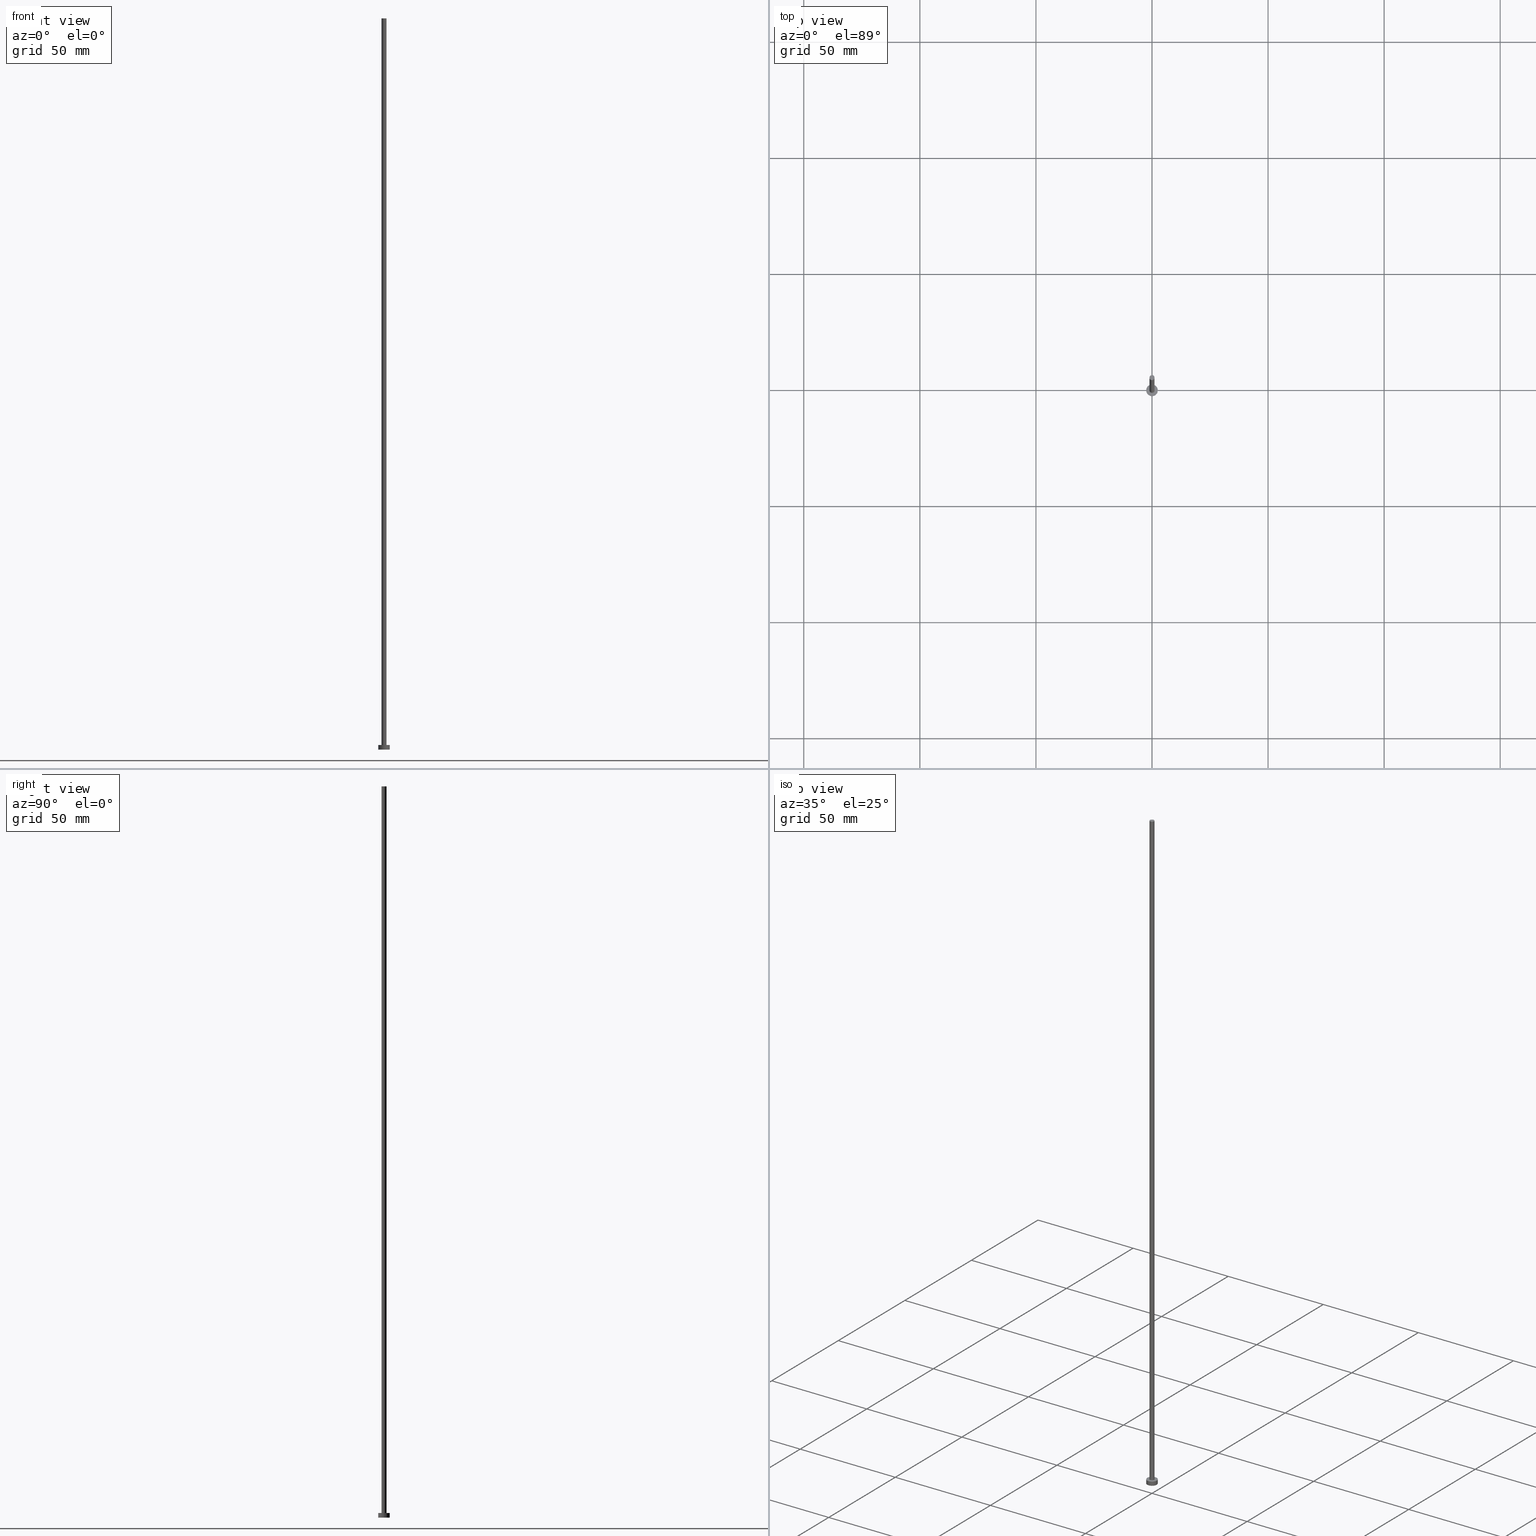
[diagram: canonical four-view strip — front | top / right | iso, engineering-drawing reading convention]
A machine part, canonical four-view strip (front | top / right | iso — engineering-drawing reading convention). The complete STEP part file that produces these views, byte-faithful:
ISO-10303-21;
HEADER;
FILE_DESCRIPTION (( 'STEP AP203' ),
    '1' );
FILE_NAME ('51c0.STEP',
    '2023-02-13T15:57:58',
    ( '' ),
    ( '' ),
    'SwSTEP 2.0',
    'SolidWorks 2019',
    '' );
FILE_SCHEMA (( 'CONFIG_CONTROL_DESIGN' ));
ENDSEC;

DATA;
#1 = DIRECTION ( 'NONE',  ( 0.000000000000000000, 0.000000000000000000, 1.000000000000000000 ) ) ;
#2 = CYLINDRICAL_SURFACE ( 'NONE', #48, 2.500000000000000000 ) ;
#3 = DIRECTION ( 'NONE',  ( 0.000000000000000000, 0.000000000000000000, 1.000000000000000000 ) ) ;
#4 =( GEOMETRIC_REPRESENTATION_CONTEXT ( 3 ) GLOBAL_UNCERTAINTY_ASSIGNED_CONTEXT ( ( #146 ) ) GLOBAL_UNIT_ASSIGNED_CONTEXT ( ( #225, #49, #170 ) ) REPRESENTATION_CONTEXT ( 'NONE', 'WORKASPACE' ) );
#5 = DIRECTION ( 'NONE',  ( 1.000000000000000000, 0.000000000000000000, 0.000000000000000000 ) ) ;
#6 = FACE_OUTER_BOUND ( 'NONE', #230, .T. ) ;
#7 = ORIENTED_EDGE ( 'NONE', *, *, #57, .T. ) ;
#8 = CARTESIAN_POINT ( 'NONE',  ( 1.100000000000000089, 1.347111479062088503E-16, 2.000000000000000000 ) ) ;
#9 = CARTESIAN_POINT ( 'NONE',  ( 0.000000000000000000, 0.000000000000000000, 2.000000000000000000 ) ) ;
#10 = ORIENTED_EDGE ( 'NONE', *, *, #206, .T. ) ;
#11 = CYLINDRICAL_SURFACE ( 'NONE', #132, 2.500000000000000000 ) ;
#12 = ORIENTED_EDGE ( 'NONE', *, *, #138, .F. ) ;
#13 = APPLICATION_PROTOCOL_DEFINITION ( 'international standard', 'config_control_design', 1994, #63 ) ;
#14 = CARTESIAN_POINT ( 'NONE',  ( -1.100000000000000089, 0.000000000000000000, 2.000000000000000000 ) ) ;
#15 = SHAPE_DEFINITION_REPRESENTATION ( #168, #141 ) ;
#16 = LOCAL_TIME ( 16, 57, 58.00000000000000000, #149 ) ;
#17 = APPROVAL_DATE_TIME ( #152, #182 ) ;
#18 = AXIS2_PLACEMENT_3D ( 'NONE', #180, #1, #77 ) ;
#19 = EDGE_CURVE ( 'NONE', #136, #81, #255, .T. ) ;
#20 = CIRCLE ( 'NONE', #227, 1.100000000000000089 ) ;
#21 = DIRECTION ( 'NONE',  ( -1.000000000000000000, 0.000000000000000000, 0.000000000000000000 ) ) ;
#22 = DIRECTION ( 'NONE',  ( -0.000000000000000000, -0.000000000000000000, -1.000000000000000000 ) ) ;
#23 = CARTESIAN_POINT ( 'NONE',  ( -2.500000000000000000, 0.000000000000000000, 2.000000000000000000 ) ) ;
#24 = APPROVAL_STATUS ( 'not_yet_approved' ) ;
#25 = CC_DESIGN_APPROVAL ( #163, ( #101 ) ) ;
#26 = ORIENTED_EDGE ( 'NONE', *, *, #57, .F. ) ;
#27 = APPLICATION_PROTOCOL_DEFINITION ( 'international standard', 'config_control_design', 1994, #113 ) ;
#28 = SECURITY_CLASSIFICATION_LEVEL ( 'unclassified' ) ;
#29 = APPROVAL_PERSON_ORGANIZATION ( #208, #182, #192 ) ;
#30 = ADVANCED_FACE ( 'NONE', ( #216 ), #126, .T. ) ;
#31 = CARTESIAN_POINT ( 'NONE',  ( 0.000000000000000000, 0.000000000000000000, 0.000000000000000000 ) ) ;
#32 = CIRCLE ( 'NONE', #179, 1.100000000000000089 ) ;
#33 = DIRECTION ( 'NONE',  ( 1.000000000000000000, 0.000000000000000000, -0.000000000000000000 ) ) ;
#34 = LINE ( 'NONE', #98, #199 ) ;
#35 = CC_DESIGN_APPROVAL ( #198, ( #150 ) ) ;
#36 = FACE_OUTER_BOUND ( 'NONE', #68, .T. ) ;
#37 = MANIFOLD_SOLID_BREP ( 'P�idat vysunut�m3', #42 ) ;
#38 = CIRCLE ( 'NONE', #153, 2.500000000000000000 ) ;
#39 = CARTESIAN_POINT ( 'NONE',  ( 0.000000000000000000, 0.000000000000000000, 0.000000000000000000 ) ) ;
#40 = FACE_OUTER_BOUND ( 'NONE', #75, .T. ) ;
#41 = ADVANCED_FACE ( 'NONE', ( #104, #36 ), #201, .T. ) ;
#42 = CLOSED_SHELL ( 'NONE', ( #118, #209, #120, #41, #95, #30, #213 ) ) ;
#43 = CARTESIAN_POINT ( 'NONE',  ( 0.000000000000000000, 0.000000000000000000, 2.000000000000000000 ) ) ;
#44 = ORIENTED_EDGE ( 'NONE', *, *, #19, .T. ) ;
#45 = EDGE_CURVE ( 'NONE', #136, #253, #144, .T. ) ;
#46 = CALENDAR_DATE ( 2023, 13, 2 ) ;
#47 = PERSON_AND_ORGANIZATION ( #231, #109 ) ;
#48 = AXIS2_PLACEMENT_3D ( 'NONE', #177, #217, #21 ) ;
#49 =( NAMED_UNIT ( * ) PLANE_ANGLE_UNIT ( ) SI_UNIT ( $, .RADIAN. ) );
#50 = CC_DESIGN_PERSON_AND_ORGANIZATION_ASSIGNMENT ( #133, #112, ( #181 ) ) ;
#51 = PERSON_AND_ORGANIZATION_ROLE ( 'design_supplier' ) ;
#52 = DIRECTION ( 'NONE',  ( -0.000000000000000000, -0.000000000000000000, -1.000000000000000000 ) ) ;
#53 = EDGE_CURVE ( 'NONE', #119, #73, #78, .T. ) ;
#54 = DIRECTION ( 'NONE',  ( -1.000000000000000000, 0.000000000000000000, 0.000000000000000000 ) ) ;
#55 = LOCAL_TIME ( 16, 57, 58.00000000000000000, #110 ) ;
#56 = DIRECTION ( 'NONE',  ( -0.000000000000000000, -0.000000000000000000, -1.000000000000000000 ) ) ;
#57 = EDGE_CURVE ( 'NONE', #240, #81, #147, .T. ) ;
#58 = AXIS2_PLACEMENT_3D ( 'NONE', #174, #97, #154 ) ;
#59 = ORIENTED_EDGE ( 'NONE', *, *, #53, .T. ) ;
#60 = CIRCLE ( 'NONE', #242, 1.100000000000000089 ) ;
#61 = ORIENTED_EDGE ( 'NONE', *, *, #45, .T. ) ;
#62 = DATE_TIME_ROLE ( 'creation_date' ) ;
#63 = APPLICATION_CONTEXT ( 'configuration controlled 3d designs of mechanical parts and assemblies' ) ;
#64 = COORDINATED_UNIVERSAL_TIME_OFFSET ( 1, 0, .AHEAD. ) ;
#65 = LOCAL_TIME ( 16, 57, 58.00000000000000000, #117 ) ;
#66 = CARTESIAN_POINT ( 'NONE',  ( 2.500000000000000000, 3.061616997868383141E-16, 2.000000000000000000 ) ) ;
#67 = EDGE_CURVE ( 'NONE', #119, #128, #32, .T. ) ;
#68 = EDGE_LOOP ( 'NONE', ( #61, #127 ) ) ;
#69 = DESIGN_CONTEXT ( 'detailed design', #113, 'design' ) ;
#70 = APPROVAL_ROLE ( '' ) ;
#71 = AXIS2_PLACEMENT_3D ( 'NONE', #31, #187, #137 ) ;
#72 = DIRECTION ( 'NONE',  ( 1.000000000000000000, 0.000000000000000000, 0.000000000000000000 ) ) ;
#73 = VERTEX_POINT ( 'NONE', #8 ) ;
#74 = ORIENTED_EDGE ( 'NONE', *, *, #67, .F. ) ;
#75 = EDGE_LOOP ( 'NONE', ( #244, #26 ) ) ;
#76 = CARTESIAN_POINT ( 'NONE',  ( 0.000000000000000000, 0.000000000000000000, 2.000000000000000000 ) ) ;
#77 = DIRECTION ( 'NONE',  ( 1.000000000000000000, 0.000000000000000000, 0.000000000000000000 ) ) ;
#78 = LINE ( 'NONE', #156, #188 ) ;
#79 = EDGE_CURVE ( 'NONE', #73, #159, #60, .T. ) ;
#80 = CYLINDRICAL_SURFACE ( 'NONE', #99, 1.100000000000000089 ) ;
#81 = VERTEX_POINT ( 'NONE', #103 ) ;
#82 = CARTESIAN_POINT ( 'NONE',  ( 0.000000000000000000, 0.000000000000000000, 315.0000000000000000 ) ) ;
#83 = ORIENTED_EDGE ( 'NONE', *, *, #53, .F. ) ;
#84 = CARTESIAN_POINT ( 'NONE',  ( 0.000000000000000000, 0.000000000000000000, 2.000000000000000000 ) ) ;
#85 = AXIS2_PLACEMENT_3D ( 'NONE', #76, #3, #123 ) ;
#86 = CARTESIAN_POINT ( 'NONE',  ( -1.100000000000000089, 0.000000000000000000, 315.0000000000000000 ) ) ;
#87 = DIRECTION ( 'NONE',  ( 0.000000000000000000, 0.000000000000000000, 1.000000000000000000 ) ) ;
#88 = PERSON_AND_ORGANIZATION_ROLE ( 'design_owner' ) ;
#89 = EDGE_LOOP ( 'NONE', ( #221, #125 ) ) ;
#90 = DIRECTION ( 'NONE',  ( -1.000000000000000000, 0.000000000000000000, 0.000000000000000000 ) ) ;
#91 = PERSON_AND_ORGANIZATION_ROLE ( 'creator' ) ;
#92 = ORIENTED_EDGE ( 'NONE', *, *, #234, .T. ) ;
#93 = VECTOR ( 'NONE', #121, 1000.000000000000000 ) ;
#94 = COORDINATED_UNIVERSAL_TIME_OFFSET ( 1, 0, .AHEAD. ) ;
#95 = ADVANCED_FACE ( 'NONE', ( #40 ), #238, .F. ) ;
#96 = EDGE_LOOP ( 'NONE', ( #12, #92, #7, #114 ) ) ;
#97 = DIRECTION ( 'NONE',  ( 0.000000000000000000, 0.000000000000000000, 1.000000000000000000 ) ) ;
#98 = CARTESIAN_POINT ( 'NONE',  ( 2.500000000000000000, 3.061616997868383141E-16, 2.000000000000000000 ) ) ;
#99 = AXIS2_PLACEMENT_3D ( 'NONE', #157, #204, #129 ) ;
#100 = DIRECTION ( 'NONE',  ( 0.000000000000000000, 0.000000000000000000, 1.000000000000000000 ) ) ;
#101 = PRODUCT_DEFINITION ( 'NEZN�M�', '', #150, #69 ) ;
#102 = CC_DESIGN_SECURITY_CLASSIFICATION ( #181, ( #150 ) ) ;
#103 = CARTESIAN_POINT ( 'NONE',  ( -2.500000000000000000, 0.000000000000000000, 0.000000000000000000 ) ) ;
#104 = FACE_BOUND ( 'NONE', #89, .T. ) ;
#105 = DIRECTION ( 'NONE',  ( 0.000000000000000000, 0.000000000000000000, 1.000000000000000000 ) ) ;
#106 = EDGE_CURVE ( 'NONE', #159, #73, #20, .T. ) ;
#107 = LINE ( 'NONE', #189, #93 ) ;
#108 = FACE_OUTER_BOUND ( 'NONE', #184, .T. ) ;
#109 = ORGANIZATION ( 'NEUR�EN�', 'NEUR�EN�', '' ) ;
#110 = COORDINATED_UNIVERSAL_TIME_OFFSET ( 1, 0, .AHEAD. ) ;
#111 = AXIS2_PLACEMENT_3D ( 'NONE', #219, #235, #54 ) ;
#112 = PERSON_AND_ORGANIZATION_ROLE ( 'classification_officer' ) ;
#113 = APPLICATION_CONTEXT ( 'configuration controlled 3d designs of mechanical parts and assemblies' ) ;
#114 = ORIENTED_EDGE ( 'NONE', *, *, #19, .F. ) ;
#115 = ORIENTED_EDGE ( 'NONE', *, *, #79, .T. ) ;
#116 = APPROVAL_STATUS ( 'not_yet_approved' ) ;
#117 = COORDINATED_UNIVERSAL_TIME_OFFSET ( 1, 0, .AHEAD. ) ;
#118 = ADVANCED_FACE ( 'NONE', ( #6 ), #80, .T. ) ;
#119 = VERTEX_POINT ( 'NONE', #245 ) ;
#120 = ADVANCED_FACE ( 'NONE', ( #108 ), #11, .T. ) ;
#121 = DIRECTION ( 'NONE',  ( -0.000000000000000000, -0.000000000000000000, -1.000000000000000000 ) ) ;
#122 = ORIENTED_EDGE ( 'NONE', *, *, #215, .T. ) ;
#123 = DIRECTION ( 'NONE',  ( 1.000000000000000000, 0.000000000000000000, -0.000000000000000000 ) ) ;
#124 = CC_DESIGN_DATE_AND_TIME_ASSIGNMENT ( #167, #151, ( #181 ) ) ;
#125 = ORIENTED_EDGE ( 'NONE', *, *, #79, .F. ) ;
#126 = CYLINDRICAL_SURFACE ( 'NONE', #111, 1.100000000000000089 ) ;
#127 = ORIENTED_EDGE ( 'NONE', *, *, #138, .T. ) ;
#128 = VERTEX_POINT ( 'NONE', #86 ) ;
#129 = DIRECTION ( 'NONE',  ( -1.000000000000000000, 0.000000000000000000, 0.000000000000000000 ) ) ;
#130 = DATE_AND_TIME ( #46, #16 ) ;
#131 = DIRECTION ( 'NONE',  ( -0.000000000000000000, -0.000000000000000000, -1.000000000000000000 ) ) ;
#132 = AXIS2_PLACEMENT_3D ( 'NONE', #9, #131, #90 ) ;
#133 = PERSON_AND_ORGANIZATION ( #231, #109 ) ;
#134 = ORIENTED_EDGE ( 'NONE', *, *, #106, .T. ) ;
#135 = DATE_AND_TIME ( #212, #143 ) ;
#136 = VERTEX_POINT ( 'NONE', #23 ) ;
#137 = DIRECTION ( 'NONE',  ( 1.000000000000000000, 0.000000000000000000, 0.000000000000000000 ) ) ;
#138 = EDGE_CURVE ( 'NONE', #253, #136, #38, .T. ) ;
#139 = AXIS2_PLACEMENT_3D ( 'NONE', #140, #87, #214 ) ;
#140 = CARTESIAN_POINT ( 'NONE',  ( 0.000000000000000000, 0.000000000000000000, 315.0000000000000000 ) ) ;
#141 = ADVANCED_BREP_SHAPE_REPRESENTATION ( '51c0', ( #37, #71 ), #4 ) ;
#142 = DIRECTION ( 'NONE',  ( 1.000000000000000000, 0.000000000000000000, 0.000000000000000000 ) ) ;
#143 = LOCAL_TIME ( 16, 57, 58.00000000000000000, #64 ) ;
#144 = CIRCLE ( 'NONE', #18, 2.500000000000000000 ) ;
#145 = EDGE_CURVE ( 'NONE', #128, #159, #107, .T. ) ;
#146 = UNCERTAINTY_MEASURE_WITH_UNIT (LENGTH_MEASURE( 1.000000000000000082E-05 ), #225, 'distance_accuracy_value', 'NONE');
#147 = CIRCLE ( 'NONE', #252, 2.500000000000000000 ) ;
#148 = EDGE_LOOP ( 'NONE', ( #83, #155, #191, #134 ) ) ;
#149 = COORDINATED_UNIVERSAL_TIME_OFFSET ( 1, 0, .AHEAD. ) ;
#150 = PRODUCT_DEFINITION_FORMATION_WITH_SPECIFIED_SOURCE ( 'LIBOVOLN�', '', #246, .NOT_KNOWN. ) ;
#151 = DATE_TIME_ROLE ( 'classification_date' ) ;
#152 = DATE_AND_TIME ( #171, #211 ) ;
#153 = AXIS2_PLACEMENT_3D ( 'NONE', #43, #207, #186 ) ;
#154 = DIRECTION ( 'NONE',  ( 1.000000000000000000, 0.000000000000000000, 0.000000000000000000 ) ) ;
#155 = ORIENTED_EDGE ( 'NONE', *, *, #206, .F. ) ;
#156 = CARTESIAN_POINT ( 'NONE',  ( 1.100000000000000089, 1.347111479062088503E-16, 315.0000000000000000 ) ) ;
#157 = CARTESIAN_POINT ( 'NONE',  ( 0.000000000000000000, 0.000000000000000000, 315.0000000000000000 ) ) ;
#158 = PRODUCT_RELATED_PRODUCT_CATEGORY ( 'detail', '', ( #246 ) ) ;
#159 = VERTEX_POINT ( 'NONE', #14 ) ;
#160 = CIRCLE ( 'NONE', #218, 2.500000000000000000 ) ;
#161 = DIRECTION ( 'NONE',  ( 0.000000000000000000, 0.000000000000000000, 1.000000000000000000 ) ) ;
#162 = ORIENTED_EDGE ( 'NONE', *, *, #145, .F. ) ;
#163 = APPROVAL ( #24, 'NEUR�EN�' ) ;
#164 = PERSON_AND_ORGANIZATION ( #231, #109 ) ;
#165 = EDGE_LOOP ( 'NONE', ( #10, #233 ) ) ;
#166 = ORIENTED_EDGE ( 'NONE', *, *, #234, .F. ) ;
#167 = DATE_AND_TIME ( #194, #65 ) ;
#168 = PRODUCT_DEFINITION_SHAPE ( 'NONE', 'NONE',  #101 ) ;
#169 = CARTESIAN_POINT ( 'NONE',  ( 0.000000000000000000, 0.000000000000000000, 0.000000000000000000 ) ) ;
#170 =( NAMED_UNIT ( * ) SI_UNIT ( $, .STERADIAN. ) SOLID_ANGLE_UNIT ( ) );
#171 = CALENDAR_DATE ( 2023, 13, 2 ) ;
#172 = DATE_AND_TIME ( #195, #55 ) ;
#173 = CARTESIAN_POINT ( 'NONE',  ( 0.000000000000000000, 0.000000000000000000, 2.000000000000000000 ) ) ;
#174 = CARTESIAN_POINT ( 'NONE',  ( 0.000000000000000000, 0.000000000000000000, 315.0000000000000000 ) ) ;
#175 = CARTESIAN_POINT ( 'NONE',  ( 0.000000000000000000, 0.000000000000000000, 0.000000000000000000 ) ) ;
#176 = ORIENTED_EDGE ( 'NONE', *, *, #45, .F. ) ;
#177 = CARTESIAN_POINT ( 'NONE',  ( 0.000000000000000000, 0.000000000000000000, 2.000000000000000000 ) ) ;
#178 = CIRCLE ( 'NONE', #58, 1.100000000000000089 ) ;
#179 = AXIS2_PLACEMENT_3D ( 'NONE', #82, #239, #185 ) ;
#180 = CARTESIAN_POINT ( 'NONE',  ( 0.000000000000000000, 0.000000000000000000, 2.000000000000000000 ) ) ;
#181 = SECURITY_CLASSIFICATION ( '', '', #28 ) ;
#182 = APPROVAL ( #116, 'NEUR�EN�' ) ;
#183 = DIRECTION ( 'NONE',  ( 0.000000000000000000, 0.000000000000000000, 1.000000000000000000 ) ) ;
#184 = EDGE_LOOP ( 'NONE', ( #166, #176, #44, #122 ) ) ;
#185 = DIRECTION ( 'NONE',  ( 1.000000000000000000, 0.000000000000000000, 0.000000000000000000 ) ) ;
#186 = DIRECTION ( 'NONE',  ( 1.000000000000000000, 0.000000000000000000, 0.000000000000000000 ) ) ;
#187 = DIRECTION ( 'NONE',  ( 0.000000000000000000, 0.000000000000000000, 1.000000000000000000 ) ) ;
#188 = VECTOR ( 'NONE', #56, 1000.000000000000000 ) ;
#189 = CARTESIAN_POINT ( 'NONE',  ( -1.100000000000000089, 0.000000000000000000, 315.0000000000000000 ) ) ;
#190 = PERSON_AND_ORGANIZATION_ROLE ( 'creator' ) ;
#191 = ORIENTED_EDGE ( 'NONE', *, *, #145, .T. ) ;
#192 = APPROVAL_ROLE ( '' ) ;
#193 = CC_DESIGN_PERSON_AND_ORGANIZATION_ASSIGNMENT ( #228, #88, ( #246 ) ) ;
#194 = CALENDAR_DATE ( 2023, 13, 2 ) ;
#195 = CALENDAR_DATE ( 2023, 13, 2 ) ;
#196 = FACE_OUTER_BOUND ( 'NONE', #96, .T. ) ;
#197 = AXIS2_PLACEMENT_3D ( 'NONE', #169, #183, #33 ) ;
#198 = APPROVAL ( #229, 'NEUR�EN�' ) ;
#199 = VECTOR ( 'NONE', #22, 1000.000000000000000 ) ;
#200 = CC_DESIGN_APPROVAL ( #182, ( #181 ) ) ;
#201 = PLANE ( 'NONE',  #85 ) ;
#202 = DIRECTION ( 'NONE',  ( 0.000000000000000000, 0.000000000000000000, 1.000000000000000000 ) ) ;
#203 = PLANE ( 'NONE',  #139 ) ;
#204 = DIRECTION ( 'NONE',  ( -0.000000000000000000, -0.000000000000000000, -1.000000000000000000 ) ) ;
#205 = CARTESIAN_POINT ( 'NONE',  ( 2.500000000000000000, 3.061616997868383141E-16, 0.000000000000000000 ) ) ;
#206 = EDGE_CURVE ( 'NONE', #128, #119, #178, .T. ) ;
#207 = DIRECTION ( 'NONE',  ( 0.000000000000000000, 0.000000000000000000, 1.000000000000000000 ) ) ;
#208 = PERSON_AND_ORGANIZATION ( #231, #109 ) ;
#209 = ADVANCED_FACE ( 'NONE', ( #196 ), #2, .T. ) ;
#210 = PERSON_AND_ORGANIZATION ( #231, #109 ) ;
#211 = LOCAL_TIME ( 16, 57, 58.00000000000000000, #94 ) ;
#212 = CALENDAR_DATE ( 2023, 13, 2 ) ;
#213 = ADVANCED_FACE ( 'NONE', ( #220 ), #203, .T. ) ;
#214 = DIRECTION ( 'NONE',  ( 1.000000000000000000, 0.000000000000000000, -0.000000000000000000 ) ) ;
#215 = EDGE_CURVE ( 'NONE', #81, #240, #160, .T. ) ;
#216 = FACE_OUTER_BOUND ( 'NONE', #148, .T. ) ;
#217 = DIRECTION ( 'NONE',  ( -0.000000000000000000, -0.000000000000000000, -1.000000000000000000 ) ) ;
#218 = AXIS2_PLACEMENT_3D ( 'NONE', #175, #100, #72 ) ;
#219 = CARTESIAN_POINT ( 'NONE',  ( 0.000000000000000000, 0.000000000000000000, 315.0000000000000000 ) ) ;
#220 = FACE_OUTER_BOUND ( 'NONE', #165, .T. ) ;
#221 = ORIENTED_EDGE ( 'NONE', *, *, #106, .F. ) ;
#222 = CC_DESIGN_PERSON_AND_ORGANIZATION_ASSIGNMENT ( #47, #51, ( #150 ) ) ;
#223 = PERSON_AND_ORGANIZATION ( #231, #109 ) ;
#224 = APPROVAL_DATE_TIME ( #130, #198 ) ;
#225 =( LENGTH_UNIT ( ) NAMED_UNIT ( * ) SI_UNIT ( .MILLI., .METRE. ) );
#226 = CC_DESIGN_PERSON_AND_ORGANIZATION_ASSIGNMENT ( #210, #190, ( #150 ) ) ;
#227 = AXIS2_PLACEMENT_3D ( 'NONE', #173, #105, #142 ) ;
#228 = PERSON_AND_ORGANIZATION ( #231, #109 ) ;
#229 = APPROVAL_STATUS ( 'not_yet_approved' ) ;
#230 = EDGE_LOOP ( 'NONE', ( #74, #59, #115, #162 ) ) ;
#231 = PERSON ( 'NEUR�EN�', 'NEUR�EN�', 'NEUR�EN�', ('NEUR�EN�'), ('NEUR�EN�'), ('NEUR�EN�') ) ;
#232 = VECTOR ( 'NONE', #52, 1000.000000000000000 ) ;
#233 = ORIENTED_EDGE ( 'NONE', *, *, #67, .T. ) ;
#234 = EDGE_CURVE ( 'NONE', #253, #240, #34, .T. ) ;
#235 = DIRECTION ( 'NONE',  ( -0.000000000000000000, -0.000000000000000000, -1.000000000000000000 ) ) ;
#236 = CARTESIAN_POINT ( 'NONE',  ( -2.500000000000000000, 0.000000000000000000, 2.000000000000000000 ) ) ;
#237 = APPROVAL_PERSON_ORGANIZATION ( #248, #198, #250 ) ;
#238 = PLANE ( 'NONE',  #197 ) ;
#239 = DIRECTION ( 'NONE',  ( 0.000000000000000000, 0.000000000000000000, 1.000000000000000000 ) ) ;
#240 = VERTEX_POINT ( 'NONE', #205 ) ;
#241 = DIRECTION ( 'NONE',  ( 1.000000000000000000, 0.000000000000000000, 0.000000000000000000 ) ) ;
#242 = AXIS2_PLACEMENT_3D ( 'NONE', #84, #161, #241 ) ;
#243 = APPROVAL_DATE_TIME ( #135, #163 ) ;
#244 = ORIENTED_EDGE ( 'NONE', *, *, #215, .F. ) ;
#245 = CARTESIAN_POINT ( 'NONE',  ( 1.100000000000000089, 1.347111479062088503E-16, 315.0000000000000000 ) ) ;
#246 = PRODUCT ( '51c0', '51c0', '', ( #249 ) ) ;
#247 = CC_DESIGN_PERSON_AND_ORGANIZATION_ASSIGNMENT ( #223, #91, ( #101 ) ) ;
#248 = PERSON_AND_ORGANIZATION ( #231, #109 ) ;
#249 = MECHANICAL_CONTEXT ( 'NONE', #63, 'mechanical' ) ;
#250 = APPROVAL_ROLE ( '' ) ;
#251 = APPROVAL_PERSON_ORGANIZATION ( #164, #163, #70 ) ;
#252 = AXIS2_PLACEMENT_3D ( 'NONE', #39, #202, #5 ) ;
#253 = VERTEX_POINT ( 'NONE', #66 ) ;
#254 = CC_DESIGN_DATE_AND_TIME_ASSIGNMENT ( #172, #62, ( #101 ) ) ;
#255 = LINE ( 'NONE', #236, #232 ) ;
ENDSEC;
END-ISO-10303-21;
